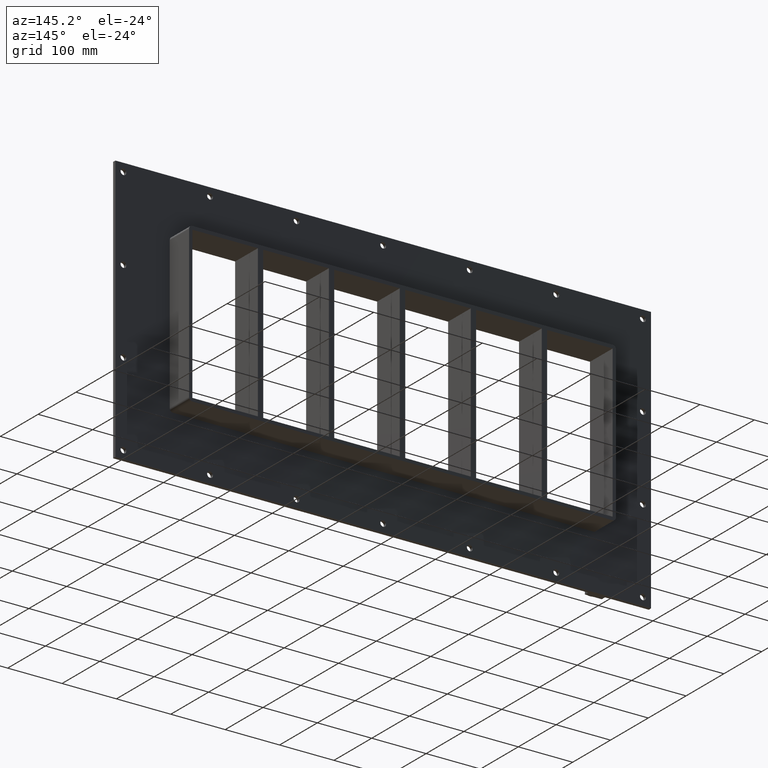
[diagram: clean part render]
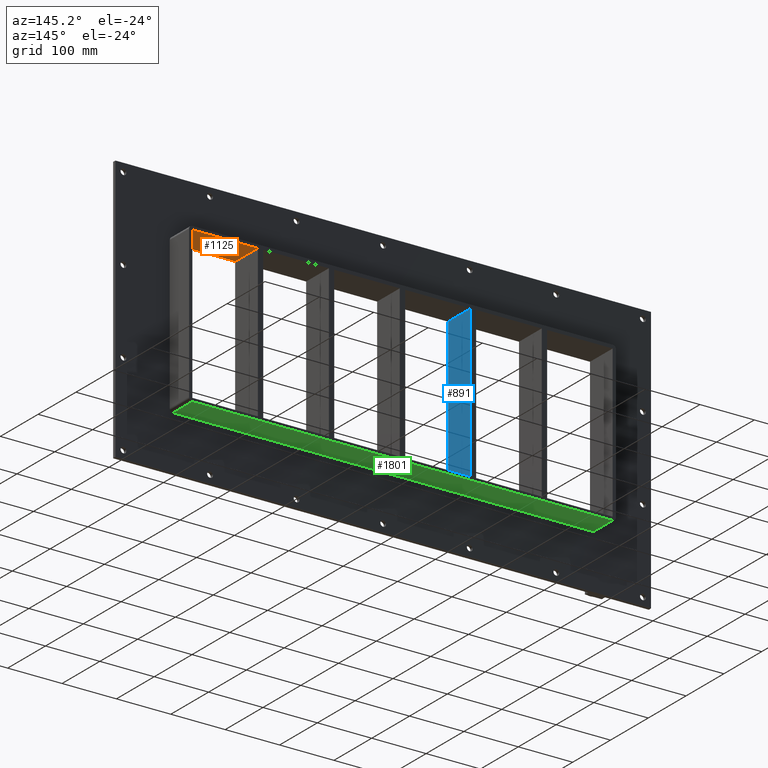
[diagram: same view with three faces highlighted in distinct colors, each labeled with its STEP entity id]
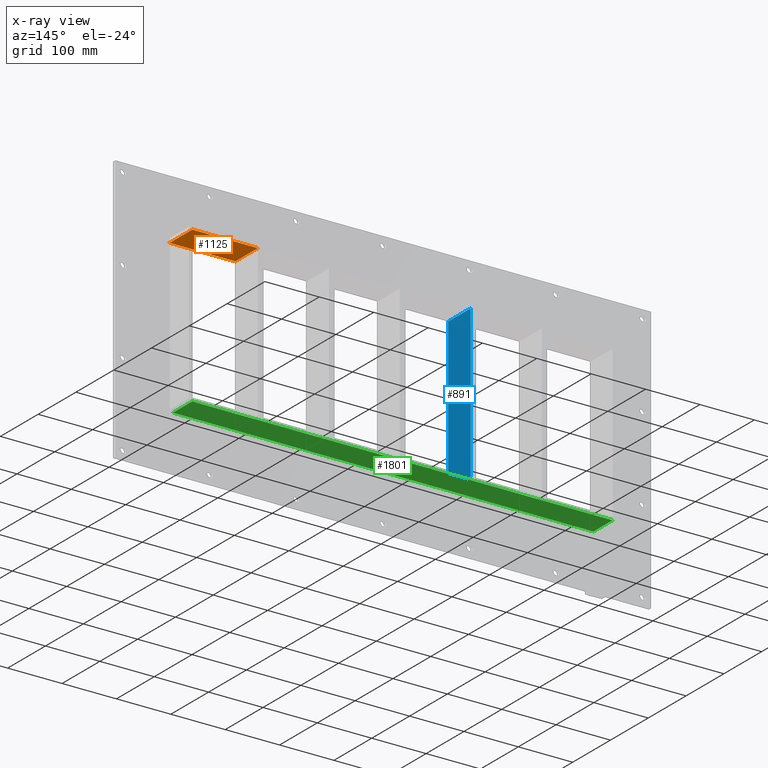
[diagram: x-ray of the same camera — body ghosted, the three highlighted faces saturated]
A machine part, auxiliary view with three faces highlighted in distinct colors.
The next image is the same camera in x-ray (body ghosted, the three faces saturated) — at least one of them is partly hidden behind the body in this view.
Their STEP definitions:

[orange] entity #1125 — the highlighted planar face has unit normal (0, 0, 1).
#617=CARTESIAN_POINT('',(265.99999999999642,-3.0,139.00000000000003));
#618=VERTEX_POINT('',#617);
#635=CARTESIAN_POINT('',(265.99999999999642,57.0,139.00000000000003));
#636=VERTEX_POINT('',#635);
#643=CARTESIAN_POINT('',(265.99999999999648,-3.0,139.00000000000003));
#644=DIRECTION('',(0.0,1.0,0.0));
#645=VECTOR('',#644,60.000000000000007);
#646=LINE('',#643,#645);
#647=EDGE_CURVE('',#618,#636,#646,.T.);
#1095=CARTESIAN_POINT('',(-386.50000000000011,0.0,139.00000000000003));
#1096=DIRECTION('',(0.0,0.0,1.0));
#1097=DIRECTION('',(1.0,0.0,0.0));
#1098=AXIS2_PLACEMENT_3D('',#1095,#1096,#1097);
#1099=PLANE('',#1098);
#1100=ORIENTED_EDGE('',*,*,#647,.T.);
#1101=CARTESIAN_POINT('',(386.50000000000023,57.0,139.00000000000003));
#1102=VERTEX_POINT('',#1101);
#1103=CARTESIAN_POINT('',(386.50000000000017,57.0,139.00000000000003));
#1104=DIRECTION('',(-1.0,0.0,0.0));
#1105=VECTOR('',#1104,120.50000000000375);
#1106=LINE('',#1103,#1105);
#1107=EDGE_CURVE('',#1102,#636,#1106,.T.);
#1108=ORIENTED_EDGE('',*,*,#1107,.F.);
#1109=CARTESIAN_POINT('',(386.50000000000023,-3.0,139.00000000000003));
#1110=VERTEX_POINT('',#1109);
#1111=CARTESIAN_POINT('',(386.50000000000023,-3.0,139.00000000000003));
#1112=DIRECTION('',(0.0,1.0,0.0));
#1113=VECTOR('',#1112,60.0);
#1114=LINE('',#1111,#1113);
#1115=EDGE_CURVE('',#1110,#1102,#1114,.T.);
#1116=ORIENTED_EDGE('',*,*,#1115,.F.);
#1117=CARTESIAN_POINT('',(265.99999999999642,-3.0,139.00000000000003));
#1118=DIRECTION('',(1.0,0.0,0.0));
#1119=VECTOR('',#1118,120.50000000000375);
#1120=LINE('',#1117,#1119);
#1121=EDGE_CURVE('',#618,#1110,#1120,.T.);
#1122=ORIENTED_EDGE('',*,*,#1121,.F.);
#1123=EDGE_LOOP('',(#1100,#1108,#1116,#1122));
#1124=FACE_OUTER_BOUND('',#1123,.T.);
#1125=ADVANCED_FACE('',(#1124),#1099,.F.);

[blue] entity #891 — the highlighted planar face has unit normal (1, 0, 0).
#852=CARTESIAN_POINT('',(-125.50000000000364,-3.0,139.00000000000003));
#853=DIRECTION('',(1.0,0.0,0.0));
#854=DIRECTION('',(0.0,0.0,-1.0));
#855=AXIS2_PLACEMENT_3D('',#852,#853,#854);
#856=PLANE('',#855);
#857=CARTESIAN_POINT('',(-125.50000000000364,-3.0,139.00000000000003));
#858=VERTEX_POINT('',#857);
#859=CARTESIAN_POINT('',(-125.50000000000364,-3.0,-138.99999999998175));
#860=VERTEX_POINT('',#859);
#861=CARTESIAN_POINT('',(-125.50000000000364,-3.0,139.00000000000003));
#862=DIRECTION('',(0.0,0.0,-1.0));
#863=VECTOR('',#862,277.99999999998181);
#864=LINE('',#861,#863);
#865=EDGE_CURVE('',#858,#860,#864,.T.);
#866=ORIENTED_EDGE('',*,*,#865,.T.);
#867=CARTESIAN_POINT('',(-125.50000000000364,57.0,-138.99999999998175));
#868=VERTEX_POINT('',#867);
#869=CARTESIAN_POINT('',(-125.50000000000365,57.000000000000007,-139.0));
#870=DIRECTION('',(0.0,-1.0,0.0));
#871=VECTOR('',#870,60.000000000000007);
#872=LINE('',#869,#871);
#873=EDGE_CURVE('',#868,#860,#872,.T.);
#874=ORIENTED_EDGE('',*,*,#873,.F.);
#875=CARTESIAN_POINT('',(-125.50000000000364,57.0,139.00000000000003));
#876=VERTEX_POINT('',#875);
#877=CARTESIAN_POINT('',(-125.50000000000364,57.0,139.00000000000003));
#878=DIRECTION('',(0.0,0.0,-1.0));
#879=VECTOR('',#878,277.99999999998181);
#880=LINE('',#877,#879);
#881=EDGE_CURVE('',#876,#868,#880,.T.);
#882=ORIENTED_EDGE('',*,*,#881,.F.);
#883=CARTESIAN_POINT('',(-125.50000000000361,-3.0,139.00000000000003));
#884=DIRECTION('',(0.0,1.0,0.0));
#885=VECTOR('',#884,60.000000000000007);
#886=LINE('',#883,#885);
#887=EDGE_CURVE('',#858,#876,#886,.T.);
#888=ORIENTED_EDGE('',*,*,#887,.F.);
#889=EDGE_LOOP('',(#866,#874,#882,#888));
#890=FACE_OUTER_BOUND('',#889,.T.);
#891=ADVANCED_FACE('',(#890),#856,.T.);

[green] entity #1801 — the highlighted planar face has unit normal (0, 0, -1).
#1384=CARTESIAN_POINT('',(-386.50000000000006,6.000000000000001,-145.0));
#1385=VERTEX_POINT('',#1384);
#1393=CARTESIAN_POINT('',(386.50000000000006,6.000000000000001,-145.0));
#1394=VERTEX_POINT('',#1393);
#1395=CARTESIAN_POINT('',(386.50000000000006,6.000000000000001,-145.0));
#1396=DIRECTION('',(-1.0,0.0,0.0));
#1397=VECTOR('',#1396,773.0);
#1398=LINE('',#1395,#1397);
#1399=EDGE_CURVE('',#1394,#1385,#1398,.T.);
#1728=CARTESIAN_POINT('',(386.50000000000006,57.0,-145.0));
#1729=VERTEX_POINT('',#1728);
#1730=CARTESIAN_POINT('',(386.50000000000006,6.000000000000001,-145.0));
#1731=DIRECTION('',(0.0,1.0,0.0));
#1732=VECTOR('',#1731,51.0);
#1733=LINE('',#1730,#1732);
#1734=EDGE_CURVE('',#1394,#1729,#1733,.T.);
#1778=CARTESIAN_POINT('',(392.50000000000006,0.0,-145.0));
#1779=DIRECTION('',(0.0,0.0,-1.0));
#1780=DIRECTION('',(-1.0,0.0,0.0));
#1781=AXIS2_PLACEMENT_3D('',#1778,#1779,#1780);
#1782=PLANE('',#1781);
#1783=ORIENTED_EDGE('',*,*,#1399,.T.);
#1784=CARTESIAN_POINT('',(-386.5,57.0,-145.0));
#1785=VERTEX_POINT('',#1784);
#1786=CARTESIAN_POINT('',(-386.50000000000006,57.0,-145.0));
#1787=DIRECTION('',(0.0,-1.0,0.0));
#1788=VECTOR('',#1787,51.0);
#1789=LINE('',#1786,#1788);
#1790=EDGE_CURVE('',#1785,#1385,#1789,.T.);
#1791=ORIENTED_EDGE('',*,*,#1790,.F.);
#1792=CARTESIAN_POINT('',(386.50000000000006,57.0,-145.0));
#1793=DIRECTION('',(-1.0,0.0,0.0));
#1794=VECTOR('',#1793,773.0);
#1795=LINE('',#1792,#1794);
#1796=EDGE_CURVE('',#1729,#1785,#1795,.T.);
#1797=ORIENTED_EDGE('',*,*,#1796,.F.);
#1798=ORIENTED_EDGE('',*,*,#1734,.F.);
#1799=EDGE_LOOP('',(#1783,#1791,#1797,#1798));
#1800=FACE_OUTER_BOUND('',#1799,.T.);
#1801=ADVANCED_FACE('',(#1800),#1782,.T.);